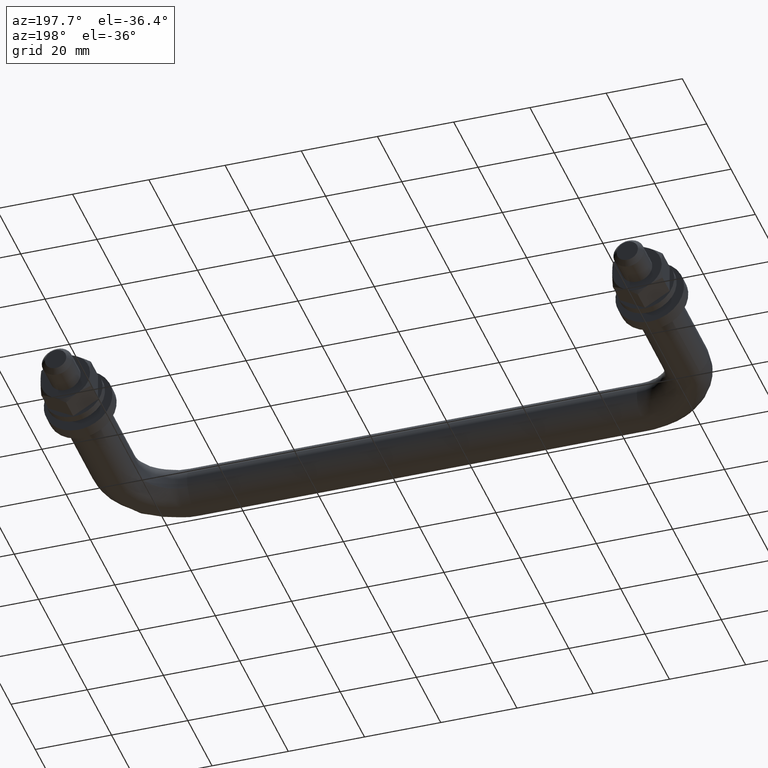
[diagram: clean part render]
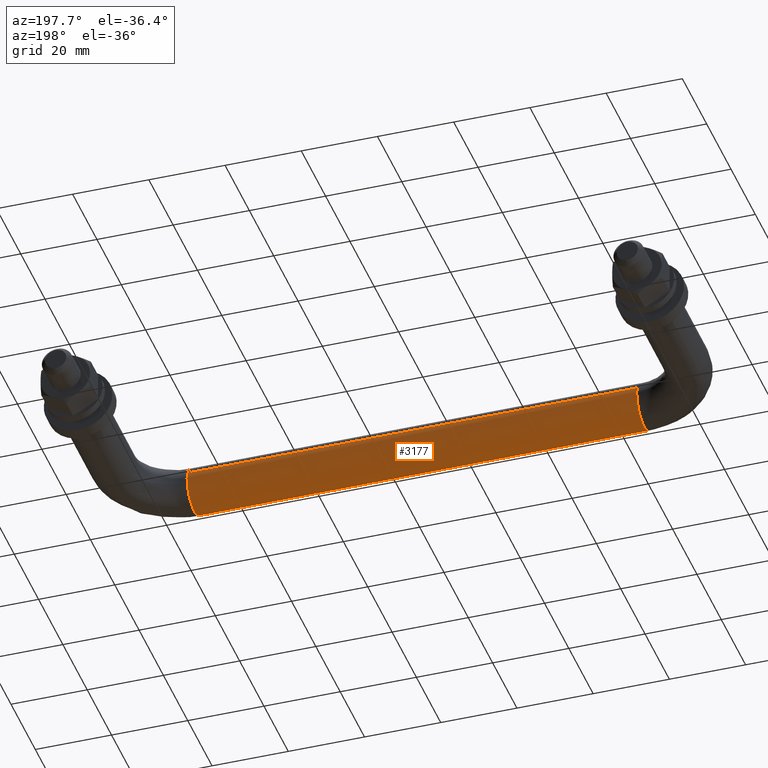
[diagram: same view with one face highlighted and labeled with its STEP entity id]
A machine part, auxiliary view. The second image highlights one B-rep face of the part: STEP entity #3177.
In plain terms, the highlighted face is a freeform B-spline surface patch.
Its self-contained STEP definition (entity closure, byte-faithful):
#2950=CARTESIAN_POINT('',(134.0,-48.423666147043868,4.053538925369788));
#2951=VERTEX_POINT('',#2950);
#2952=CARTESIAN_POINT('',(134.0,-38.342843064154778,1.999143667478238));
#2953=VERTEX_POINT('',#2952);
#2969=CARTESIAN_POINT('',(16.0,-38.342843064154792,1.999143667478240));
#2970=VERTEX_POINT('',#2969);
#2971=CARTESIAN_POINT('',(16.0,-38.342843064154792,1.999143667478240));
#2972=CARTESIAN_POINT('',(134.0,-38.342843064154778,1.999143667478238));
#2973=QUASI_UNIFORM_CURVE('',1,(#2971,#2972),.UNSPECIFIED.,.F.,.U.);
#2974=EDGE_CURVE('',#2970,#2953,#2973,.T.);
#2993=CARTESIAN_POINT('',(15.999999999983400,-48.423666334145452,4.053538721060258));
#2994=VERTEX_POINT('',#2993);
#3008=CARTESIAN_POINT('',(15.999999999983400,-48.423666334145452,4.053538721060258));
#3009=CARTESIAN_POINT('',(134.0,-48.423666147043868,4.053538925369788));
#3010=QUASI_UNIFORM_CURVE('',1,(#3008,#3009),.UNSPECIFIED.,.F.,.U.);
#3011=EDGE_CURVE('',#2994,#2951,#3010,.T.);
#3016=CARTESIAN_POINT('',(13.049999999366779,-48.423664020860741,4.053541245693961));
#3017=CARTESIAN_POINT('',(13.049999999366785,-52.477205266554705,-0.370122775166782));
#3018=CARTESIAN_POINT('',(13.049999999366779,-48.053541245693957,-4.423664020860743));
#3019=CARTESIAN_POINT('',(13.049999999366785,-43.629877224833216,-8.477205266554705));
#3020=CARTESIAN_POINT('',(13.049999999366779,-39.576335979139259,-4.053541245693961));
#3021=CARTESIAN_POINT('',(13.049999999366781,-37.142525474264268,-1.397503151732192));
#3022=CARTESIAN_POINT('',(13.049999999366786,-38.342843064116067,1.999143667368710));
#3023=CARTESIAN_POINT('',(137.023750000015810,-48.423664020860727,4.053541245693961));
#3024=CARTESIAN_POINT('',(137.023750000015840,-52.477205266554698,-0.370122775166782));
#3025=CARTESIAN_POINT('',(137.023750000015810,-48.053541245693950,-4.423664020860743));
#3026=CARTESIAN_POINT('',(137.023750000015840,-43.629877224833209,-8.477205266554705));
#3027=CARTESIAN_POINT('',(137.023750000015810,-39.576335979139252,-4.053541245693961));
#3028=CARTESIAN_POINT('',(137.023750000015840,-37.142525474264268,-1.397503151732192));
#3029=CARTESIAN_POINT('',(137.023750000015890,-38.342843064116060,1.999143667368710));
#3037=(BOUNDED_SURFACE()B_SPLINE_SURFACE(2,1,((#3016,#3023),(#3017,#3024),(#3018,#3025),(#3019,#3026),(#3020,#3027),(#3021,#3028),(#3022,#3029)),.UNSPECIFIED.,.F.,.F.,.U.)B_SPLINE_SURFACE_WITH_KNOTS((3,2,2,3),(2,2),(0.0,9.941125496954280,19.882250993908560,26.642216331837471),(0.0,123.973750000649100),.UNSPECIFIED.)GEOMETRIC_REPRESENTATION_ITEM()RATIONAL_B_SPLINE_SURFACE(((1.0,1.0),(0.707106781186548,0.707106781186548),(1.0,1.0),(0.707106781186548,0.707106781186548),(1.0,1.0),(0.800832611206852,0.800832611206852),(0.872532871172385,0.872532871172385)))REPRESENTATION_ITEM('')SURFACE());
#3038=CARTESIAN_POINT('',(134.0,-38.0,0.0));
#3039=VERTEX_POINT('',#3038);
#3040=CARTESIAN_POINT('',(133.999999999999970,-38.342843064154785,1.999143667478239));
#3041=CARTESIAN_POINT('',(134.0,-38.0,1.028969762659949));
#3042=CARTESIAN_POINT('',(134.0,-38.0,0.0));
#3050=(BOUNDED_CURVE()B_SPLINE_CURVE(2,(#3040,#3041,#3042),.UNSPECIFIED.,.F.,.U.)B_SPLINE_CURVE_WITH_KNOTS((3,3),(0.943388783513535,1.0),.UNSPECIFIED.)CURVE()GEOMETRIC_REPRESENTATION_ITEM()RATIONAL_B_SPLINE_CURVE((0.897389202267201,0.933675834329336,1.0))REPRESENTATION_ITEM(''));
#3051=EDGE_CURVE('',#2953,#3039,#3050,.T.);
#3052=ORIENTED_EDGE('',*,*,#3051,.T.);
#3053=CARTESIAN_POINT('',(133.999999999551110,-38.508552964590407,-2.417438614999606));
#3054=VERTEX_POINT('',#3053);
#3055=CARTESIAN_POINT('',(134.0,-38.0,0.0));
#3056=CARTESIAN_POINT('',(133.999999999999970,-38.0,-1.262211073157958));
#3057=CARTESIAN_POINT('',(133.999999999551050,-38.508552964590407,-2.417438614999606));
#3065=(BOUNDED_CURVE()B_SPLINE_CURVE(2,(#3055,#3056,#3057),.UNSPECIFIED.,.F.,.U.)B_SPLINE_CURVE_WITH_KNOTS((3,3),(0.0,0.068414990179371),.UNSPECIFIED.)CURVE()GEOMETRIC_REPRESENTATION_ITEM()RATIONAL_B_SPLINE_CURVE((1.0,0.919846853245093,0.883563120474848))REPRESENTATION_ITEM(''));
#3066=EDGE_CURVE('',#3039,#3054,#3065,.T.);
#3067=ORIENTED_EDGE('',*,*,#3066,.T.);
#3068=CARTESIAN_POINT('',(133.999999999887710,-46.417438614712417,-5.491447035536014));
#3069=VERTEX_POINT('',#3068);
#3070=CARTESIAN_POINT('',(133.999999999551050,-38.508552964590407,-2.417438614999606));
#3071=CARTESIAN_POINT('',(134.000000000000060,-40.085664093939506,-6.0));
#3072=CARTESIAN_POINT('',(134.0,-44.0,-6.0));
#3073=CARTESIAN_POINT('',(133.999999999999970,-45.262211072830290,-6.000000000000001));
#3074=CARTESIAN_POINT('',(133.999999999887760,-46.417438614712424,-5.491447035536014));
#3082=(BOUNDED_CURVE()B_SPLINE_CURVE(2,(#3070,#3071,#3072,#3073,#3074),.UNSPECIFIED.,.F.,.U.)B_SPLINE_CURVE_WITH_KNOTS((3,2,3),(0.068414990179371,0.250000000000000,0.318414990163034),.UNSPECIFIED.)CURVE()GEOMETRIC_REPRESENTATION_ITEM()RATIONAL_B_SPLINE_CURVE((0.883563120474848,0.787259927941454,1.0,0.919846853264233,0.883563120492176))REPRESENTATION_ITEM(''));
#3083=EDGE_CURVE('',#3054,#3069,#3082,.T.);
#3084=ORIENTED_EDGE('',*,*,#3083,.T.);
#3085=CARTESIAN_POINT('',(134.0,-49.999999999999993,0.0));
#3086=VERTEX_POINT('',#3085);
#3087=CARTESIAN_POINT('',(133.999999999887760,-46.417438614712424,-5.491447035536014));
#3088=CARTESIAN_POINT('',(134.000000000000060,-49.999999999999986,-3.914335906507812));
#3089=CARTESIAN_POINT('',(134.0,-49.999999999999993,0.0));
#3097=(BOUNDED_CURVE()B_SPLINE_CURVE(2,(#3087,#3088,#3089),.UNSPECIFIED.,.F.,.U.)B_SPLINE_CURVE_WITH_KNOTS((3,3),(0.318414990163034,0.500000000000000),.UNSPECIFIED.)CURVE()GEOMETRIC_REPRESENTATION_ITEM()RATIONAL_B_SPLINE_CURVE((0.883563120492176,0.787259927922315,1.0))REPRESENTATION_ITEM(''));
#3098=EDGE_CURVE('',#3069,#3086,#3097,.T.);
#3099=ORIENTED_EDGE('',*,*,#3098,.T.);
#3100=CARTESIAN_POINT('',(134.0,-49.999999999999993,0.0));
#3101=CARTESIAN_POINT('',(133.999999999999970,-49.999999999999993,2.333270579576086));
#3102=CARTESIAN_POINT('',(134.000000000000030,-48.423666147043868,4.053538925369788));
#3110=(BOUNDED_CURVE()B_SPLINE_CURVE(2,(#3100,#3101,#3102),.UNSPECIFIED.,.F.,.U.)B_SPLINE_CURVE_WITH_KNOTS((3,3),(0.500000000000000,0.618415129901655),.UNSPECIFIED.)CURVE()GEOMETRIC_REPRESENTATION_ITEM()RATIONAL_B_SPLINE_CURVE((1.0,0.861268045787564,0.853959790611737))REPRESENTATION_ITEM(''));
#3111=EDGE_CURVE('',#3086,#2951,#3110,.T.);
#3112=ORIENTED_EDGE('',*,*,#3111,.T.);
#3113=ORIENTED_EDGE('',*,*,#3011,.F.);
#3114=CARTESIAN_POINT('',(16.0,-49.999999999999993,0.0));
#3115=VERTEX_POINT('',#3114);
#3116=CARTESIAN_POINT('',(16.0,-49.999999999999993,0.0));
#3117=CARTESIAN_POINT('',(16.000000000000007,-49.999999999999993,2.333270420019758));
#3118=CARTESIAN_POINT('',(15.999999999983405,-48.423666334145452,4.053538721060259));
#3126=(BOUNDED_CURVE()B_SPLINE_CURVE(2,(#3116,#3117,#3118),.UNSPECIFIED.,.F.,.U.)B_SPLINE_CURVE_WITH_KNOTS((3,3),(0.500000000000000,0.618415122927454),.UNSPECIFIED.)CURVE()GEOMETRIC_REPRESENTATION_ITEM()RATIONAL_B_SPLINE_CURVE((1.0,0.861268053958349,0.853959791472594))REPRESENTATION_ITEM(''));
#3127=EDGE_CURVE('',#3115,#2994,#3126,.T.);
#3128=ORIENTED_EDGE('',*,*,#3127,.F.);
#3129=CARTESIAN_POINT('',(15.999999999382229,-43.581600489776719,-5.985394042988725));
#3130=VERTEX_POINT('',#3129);
#3131=CARTESIAN_POINT('',(15.999999999382229,-43.581600489776719,-5.985394042988726));
#3132=CARTESIAN_POINT('',(15.999999999999998,-43.790545303978277,-6.000000000000002));
#3133=CARTESIAN_POINT('',(16.0,-44.0,-6.0));
#3134=CARTESIAN_POINT('',(15.999999999999998,-49.999999999999986,-6.0));
#3135=CARTESIAN_POINT('',(16.0,-49.999999999999993,0.0));
#3143=(BOUNDED_CURVE()B_SPLINE_CURVE(2,(#3131,#3132,#3133,#3134,#3135),.UNSPECIFIED.,.F.,.U.)B_SPLINE_CURVE_WITH_KNOTS((3,2,3),(0.237833686490849,0.250000000000000,0.500000000000000),.UNSPECIFIED.)CURVE()GEOMETRIC_REPRESENTATION_ITEM()RATIONAL_B_SPLINE_CURVE((0.972879876293399,0.985746277100845,1.0,0.707106781186548,1.0))REPRESENTATION_ITEM(''));
#3144=EDGE_CURVE('',#3130,#3115,#3143,.T.);
#3145=ORIENTED_EDGE('',*,*,#3144,.F.);
#3146=CARTESIAN_POINT('',(16.0,-38.0,0.0));
#3147=VERTEX_POINT('',#3146);
#3148=CARTESIAN_POINT('',(16.0,-38.0,0.0));
#3149=CARTESIAN_POINT('',(16.000000000000004,-38.000000000000007,-5.595221082155424));
#3150=CARTESIAN_POINT('',(15.999999999382229,-43.581600489776719,-5.985394042988726));
#3158=(BOUNDED_CURVE()B_SPLINE_CURVE(2,(#3148,#3149,#3150),.UNSPECIFIED.,.F.,.U.)B_SPLINE_CURVE_WITH_KNOTS((3,3),(0.0,0.237833686490849),.UNSPECIFIED.)CURVE()GEOMETRIC_REPRESENTATION_ITEM()RATIONAL_B_SPLINE_CURVE((1.0,0.721360504085703,0.972879876293399))REPRESENTATION_ITEM(''));
#3159=EDGE_CURVE('',#3147,#3130,#3158,.T.);
#3160=ORIENTED_EDGE('',*,*,#3159,.F.);
#3161=CARTESIAN_POINT('',(15.999999999999998,-38.342843064154792,1.999143667478240));
#3162=CARTESIAN_POINT('',(16.0,-38.0,1.028969762659951));
#3163=CARTESIAN_POINT('',(16.0,-38.0,0.0));
#3171=(BOUNDED_CURVE()B_SPLINE_CURVE(2,(#3161,#3162,#3163),.UNSPECIFIED.,.F.,.U.)B_SPLINE_CURVE_WITH_KNOTS((3,3),(0.943388783513534,1.0),.UNSPECIFIED.)CURVE()GEOMETRIC_REPRESENTATION_ITEM()RATIONAL_B_SPLINE_CURVE((0.897389202267201,0.933675834329336,1.0))REPRESENTATION_ITEM(''));
#3172=EDGE_CURVE('',#2970,#3147,#3171,.T.);
#3173=ORIENTED_EDGE('',*,*,#3172,.F.);
#3174=ORIENTED_EDGE('',*,*,#2974,.T.);
#3175=EDGE_LOOP('',(#3052,#3067,#3084,#3099,#3112,#3113,#3128,#3145,#3160,#3173,#3174));
#3176=FACE_OUTER_BOUND('',#3175,.T.);
#3177=ADVANCED_FACE('',(#3176),#3037,.T.);